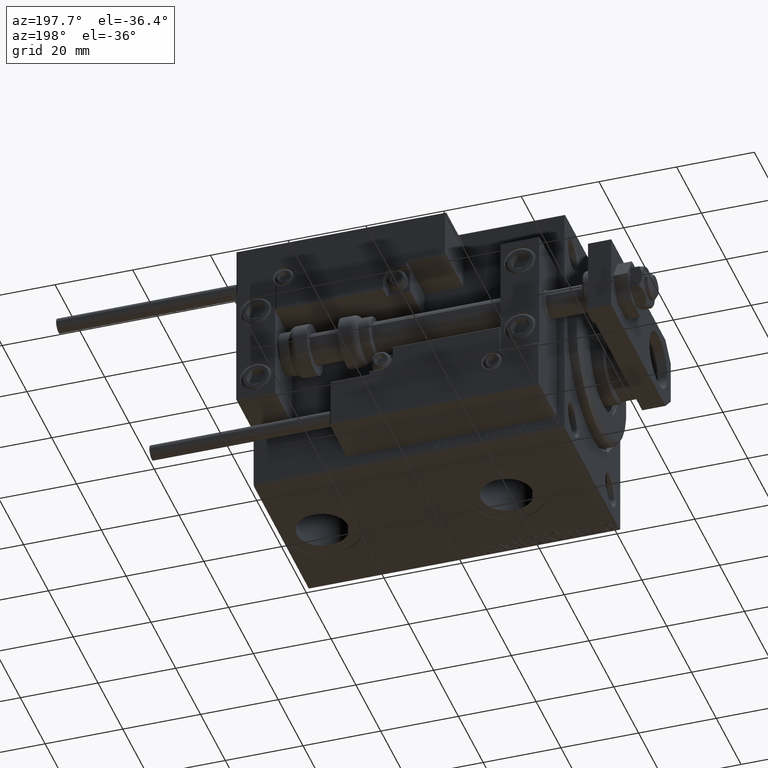
[diagram: clean part render]
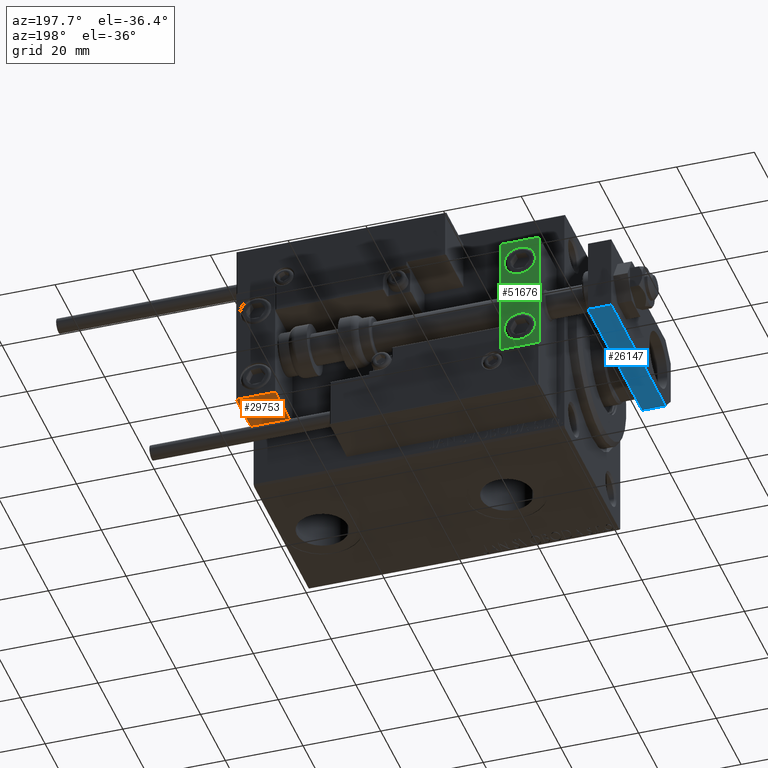
[diagram: same view with three faces highlighted in distinct colors, each labeled with its STEP entity id]
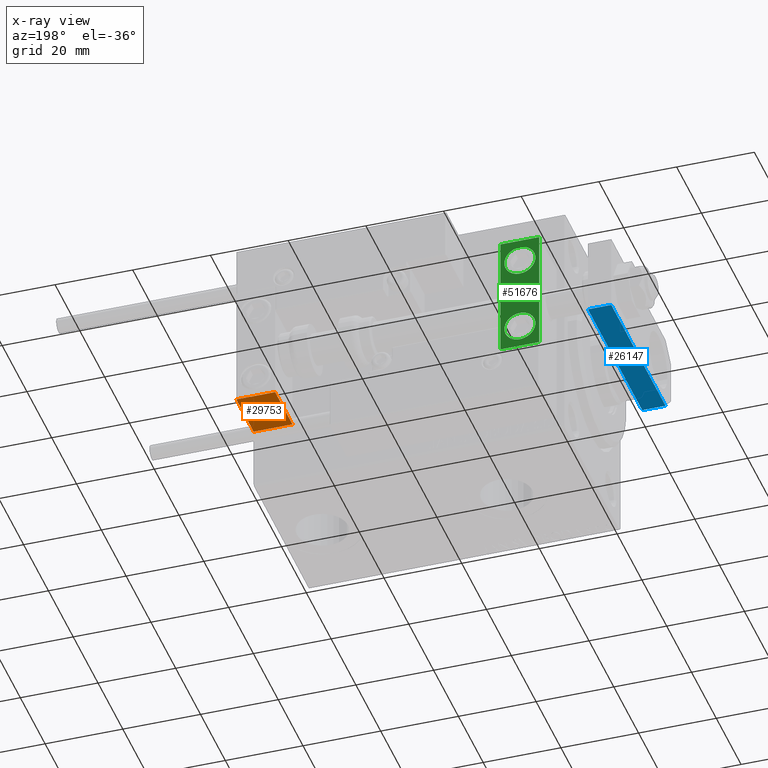
[diagram: x-ray of the same camera — body ghosted, the three highlighted faces saturated]
A machine part, auxiliary view with three faces highlighted in distinct colors.
The next image is the same camera in x-ray (body ghosted, the three faces saturated) — at least one of them is partly hidden behind the body in this view.
Their STEP definitions:

[orange] entity #29753 — the highlighted planar face has unit normal (0, 0, -1).
#960 = VECTOR ( 'NONE', #49101, 1000.000000000000000 ) ;
#1584 = DIRECTION ( 'NONE',  ( -1.000000000000000000, -0.000000000000000000, -0.000000000000000000 ) ) ;
#2459 = EDGE_CURVE ( 'NONE', #25070, #26708, #20654, .T. ) ;
#2849 = DIRECTION ( 'NONE',  ( -1.000000000000000000, -0.000000000000000000, -0.000000000000000000 ) ) ;
#4058 = DIRECTION ( 'NONE',  ( 0.000000000000000000, 0.000000000000000000, -1.000000000000000000 ) ) ;
#6932 = EDGE_CURVE ( 'NONE', #28813, #26708, #29768, .T. ) ;
#7536 = ORIENTED_EDGE ( 'NONE', *, *, #17649, .F. ) ;
#7581 = CARTESIAN_POINT ( 'NONE',  ( 10.00000000000000000, 7.000000000000000000, -16.00000000000000711 ) ) ;
#9059 = LINE ( 'NONE', #25288, #51463 ) ;
#12638 = CARTESIAN_POINT ( 'NONE',  ( 0.000000000000000000, 7.000000000000000000, -16.00000000000000711 ) ) ;
#13085 = CARTESIAN_POINT ( 'NONE',  ( 10.00000000000000000, 7.000000000000000000, -16.00000000000000711 ) ) ;
#14382 = EDGE_CURVE ( 'NONE', #48520, #28813, #9059, .T. ) ;
#16549 = PLANE ( 'NONE',  #42567 ) ;
#17356 = DIRECTION ( 'NONE',  ( -1.000000000000000000, 0.000000000000000000, -0.000000000000000000 ) ) ;
#17649 = EDGE_CURVE ( 'NONE', #48520, #25070, #18792, .T. ) ;
#18792 = LINE ( 'NONE', #7581, #24372 ) ;
#18944 = VECTOR ( 'NONE', #1584, 1000.000000000000000 ) ;
#20654 = LINE ( 'NONE', #21726, #960 ) ;
#21726 = CARTESIAN_POINT ( 'NONE',  ( 0.000000000000000000, 7.000000000000000000, -16.00000000000000711 ) ) ;
#22605 = CARTESIAN_POINT ( 'NONE',  ( 0.000000000000000000, -7.000000000000000000, -16.00000000000000711 ) ) ;
#24372 = VECTOR ( 'NONE', #2849, 1000.000000000000000 ) ;
#25070 = VERTEX_POINT ( 'NONE', #12638 ) ;
#25288 = CARTESIAN_POINT ( 'NONE',  ( 10.00000000000000000, 7.000000000000000000, -16.00000000000000711 ) ) ;
#25398 = ORIENTED_EDGE ( 'NONE', *, *, #2459, .F. ) ;
#26708 = VERTEX_POINT ( 'NONE', #22605 ) ;
#28813 = VERTEX_POINT ( 'NONE', #31573 ) ;
#29753 = ADVANCED_FACE ( 'NONE', ( #48722 ), #16549, .T. ) ;
#29768 = LINE ( 'NONE', #38014, #18944 ) ;
#31287 = EDGE_LOOP ( 'NONE', ( #25398, #7536, #44270, #34687 ) ) ;
#31573 = CARTESIAN_POINT ( 'NONE',  ( 10.00000000000000000, -7.000000000000000000, -16.00000000000000711 ) ) ;
#32996 = CARTESIAN_POINT ( 'NONE',  ( 10.00000000000000000, 7.000000000000000000, -16.00000000000000711 ) ) ;
#34687 = ORIENTED_EDGE ( 'NONE', *, *, #6932, .T. ) ;
#38014 = CARTESIAN_POINT ( 'NONE',  ( 10.00000000000000000, -7.000000000000000000, -16.00000000000000711 ) ) ;
#42567 = AXIS2_PLACEMENT_3D ( 'NONE', #13085, #4058, #17356 ) ;
#44270 = ORIENTED_EDGE ( 'NONE', *, *, #14382, .T. ) ;
#46024 = DIRECTION ( 'NONE',  ( 0.000000000000000000, -1.000000000000000000, 0.000000000000000000 ) ) ;
#48520 = VERTEX_POINT ( 'NONE', #32996 ) ;
#48722 = FACE_OUTER_BOUND ( 'NONE', #31287, .T. ) ;
#49101 = DIRECTION ( 'NONE',  ( 0.000000000000000000, -1.000000000000000000, 0.000000000000000000 ) ) ;
#51463 = VECTOR ( 'NONE', #46024, 1000.000000000000000 ) ;

[blue] entity #26147 — the highlighted planar face has unit normal (0, -0, 1).
#109 = EDGE_CURVE ( 'NONE', #16034, #46154, #10763, .T. ) ;
#1096 = LINE ( 'NONE', #24750, #4235 ) ;
#1238 = LINE ( 'NONE', #30192, #29770 ) ;
#3460 = CARTESIAN_POINT ( 'NONE',  ( -10.00000000000000000, 48.00000000000000000, 6.000000000000000000 ) ) ;
#4235 = VECTOR ( 'NONE', #8784, 1000.000000000000000 ) ;
#4381 = VERTEX_POINT ( 'NONE', #52573 ) ;
#6141 = CARTESIAN_POINT ( 'NONE',  ( -10.00000000000000000, 48.00000000000000000, 0.000000000000000000 ) ) ;
#7949 = PLANE ( 'NONE',  #9419 ) ;
#8176 = ORIENTED_EDGE ( 'NONE', *, *, #109, .T. ) ;
#8784 = DIRECTION ( 'NONE',  ( -0.000000000000000000, -0.000000000000000000, -1.000000000000000000 ) ) ;
#9419 = AXIS2_PLACEMENT_3D ( 'NONE', #3460, #32410, #23150 ) ;
#10763 = LINE ( 'NONE', #35219, #35641 ) ;
#13680 = VECTOR ( 'NONE', #47330, 1000.000000000000000 ) ;
#16034 = VERTEX_POINT ( 'NONE', #17579 ) ;
#17579 = CARTESIAN_POINT ( 'NONE',  ( -10.00000000000000533, 4.240000000000021529, 0.000000000000000000 ) ) ;
#17885 = CARTESIAN_POINT ( 'NONE',  ( -10.00000000000000533, 4.240000000000021529, 6.000000000000000000 ) ) ;
#23150 = DIRECTION ( 'NONE',  ( 1.084202172485504434E-16, 1.000000000000000000, 0.000000000000000000 ) ) ;
#24750 = CARTESIAN_POINT ( 'NONE',  ( -10.00000000000000000, 48.00000000000000000, 6.000000000000000000 ) ) ;
#25134 = EDGE_CURVE ( 'NONE', #4381, #46154, #1238, .T. ) ;
#25927 = EDGE_CURVE ( 'NONE', #27046, #16034, #38324, .T. ) ;
#26147 = ADVANCED_FACE ( 'NONE', ( #47848 ), #7949, .F. ) ;
#27046 = VERTEX_POINT ( 'NONE', #38238 ) ;
#27434 = EDGE_CURVE ( 'NONE', #4381, #27046, #1096, .T. ) ;
#29770 = VECTOR ( 'NONE', #37116, 1000.000000000000000 ) ;
#30069 = ORIENTED_EDGE ( 'NONE', *, *, #27434, .T. ) ;
#30192 = CARTESIAN_POINT ( 'NONE',  ( -10.00000000000000000, 48.00000000000000000, 6.000000000000000000 ) ) ;
#31222 = DIRECTION ( 'NONE',  ( 0.000000000000000000, 0.000000000000000000, 1.000000000000000000 ) ) ;
#32410 = DIRECTION ( 'NONE',  ( 1.000000000000000000, -1.084202172485504434E-16, 0.000000000000000000 ) ) ;
#35219 = CARTESIAN_POINT ( 'NONE',  ( -10.00000000000000533, 4.240000000000021529, 6.000000000000000000 ) ) ;
#35641 = VECTOR ( 'NONE', #31222, 1000.000000000000000 ) ;
#37031 = ORIENTED_EDGE ( 'NONE', *, *, #25134, .F. ) ;
#37116 = DIRECTION ( 'NONE',  ( -1.084202172485504434E-16, -1.000000000000000000, 0.000000000000000000 ) ) ;
#38238 = CARTESIAN_POINT ( 'NONE',  ( -10.00000000000000000, 48.00000000000000000, 0.000000000000000000 ) ) ;
#38324 = LINE ( 'NONE', #6141, #13680 ) ;
#39449 = EDGE_LOOP ( 'NONE', ( #40428, #8176, #37031, #30069 ) ) ;
#40428 = ORIENTED_EDGE ( 'NONE', *, *, #25927, .T. ) ;
#46154 = VERTEX_POINT ( 'NONE', #17885 ) ;
#47330 = DIRECTION ( 'NONE',  ( -1.084202172485504434E-16, -1.000000000000000000, 0.000000000000000000 ) ) ;
#47848 = FACE_OUTER_BOUND ( 'NONE', #39449, .T. ) ;
#52573 = CARTESIAN_POINT ( 'NONE',  ( -10.00000000000000000, 48.00000000000000000, 6.000000000000000000 ) ) ;

[green] entity #51676 — the highlighted planar face has unit normal (-0, 1, 0).
#1236 = CARTESIAN_POINT ( 'NONE',  ( 5.000000000000000888, 6.999999999999999112, -10.00000000000000178 ) ) ;
#1497 = EDGE_CURVE ( 'NONE', #3571, #25070, #32760, .T. ) ;
#2745 = AXIS2_PLACEMENT_3D ( 'NONE', #35563, #24120, #23359 ) ;
#2849 = DIRECTION ( 'NONE',  ( -1.000000000000000000, -0.000000000000000000, -0.000000000000000000 ) ) ;
#3571 = VERTEX_POINT ( 'NONE', #38262 ) ;
#4427 = AXIS2_PLACEMENT_3D ( 'NONE', #30572, #6384, #35609 ) ;
#5391 = VERTEX_POINT ( 'NONE', #34540 ) ;
#5806 = DIRECTION ( 'NONE',  ( -1.000000000000000000, -0.000000000000000000, -0.000000000000000000 ) ) ;
#6151 = CIRCLE ( 'NONE', #2745, 4.000000000000000888 ) ;
#6384 = DIRECTION ( 'NONE',  ( -0.000000000000000000, 1.000000000000000000, 0.000000000000000000 ) ) ;
#6926 = DIRECTION ( 'NONE',  ( 0.000000000000000000, 0.000000000000000000, 1.000000000000000000 ) ) ;
#7188 = CARTESIAN_POINT ( 'NONE',  ( 5.000000000000000888, 7.000000000000000888, 10.00000000000000178 ) ) ;
#7581 = CARTESIAN_POINT ( 'NONE',  ( 10.00000000000000000, 7.000000000000000000, -16.00000000000000711 ) ) ;
#8264 = CARTESIAN_POINT ( 'NONE',  ( 5.000000000000001776, 6.999999999999999112, -14.00000000000000178 ) ) ;
#8920 = DIRECTION ( 'NONE',  ( 0.000000000000000000, 1.000000000000000000, -6.065466699219605527E-17 ) ) ;
#9641 = VERTEX_POINT ( 'NONE', #8264 ) ;
#10544 = ORIENTED_EDGE ( 'NONE', *, *, #17649, .T. ) ;
#10734 = CIRCLE ( 'NONE', #43857, 4.000000000000000000 ) ;
#10743 = EDGE_CURVE ( 'NONE', #43964, #5391, #47164, .T. ) ;
#11903 = ORIENTED_EDGE ( 'NONE', *, *, #12250, .T. ) ;
#11917 = DIRECTION ( 'NONE',  ( 0.000000000000000000, 0.000000000000000000, 1.000000000000000000 ) ) ;
#11932 = VECTOR ( 'NONE', #28250, 1000.000000000000000 ) ;
#12092 = ORIENTED_EDGE ( 'NONE', *, *, #48994, .F. ) ;
#12250 = EDGE_CURVE ( 'NONE', #5391, #43964, #10734, .T. ) ;
#12538 = CARTESIAN_POINT ( 'NONE',  ( 0.000000000000000000, 7.000000000000000000, 15.99999999999999289 ) ) ;
#12638 = CARTESIAN_POINT ( 'NONE',  ( 0.000000000000000000, 7.000000000000000000, -16.00000000000000711 ) ) ;
#13967 = ORIENTED_EDGE ( 'NONE', *, *, #10743, .T. ) ;
#14053 = LINE ( 'NONE', #33995, #23029 ) ;
#14360 = FACE_BOUND ( 'NONE', #26729, .T. ) ;
#15012 = VERTEX_POINT ( 'NONE', #18558 ) ;
#15295 = EDGE_CURVE ( 'NONE', #15012, #9641, #50627, .T. ) ;
#17523 = ORIENTED_EDGE ( 'NONE', *, *, #28707, .F. ) ;
#17649 = EDGE_CURVE ( 'NONE', #48520, #25070, #18792, .T. ) ;
#17745 = CARTESIAN_POINT ( 'NONE',  ( 10.00000000000000000, 7.000000000000000000, 15.99999999999999289 ) ) ;
#18417 = DIRECTION ( 'NONE',  ( 0.000000000000000000, 0.000000000000000000, -1.000000000000000000 ) ) ;
#18558 = CARTESIAN_POINT ( 'NONE',  ( 5.000000000000000888, 6.999999999999999112, -6.000000000000000888 ) ) ;
#18792 = LINE ( 'NONE', #7581, #24372 ) ;
#20411 = CARTESIAN_POINT ( 'NONE',  ( 5.000000000000000888, 7.000000000000000888, 10.00000000000000178 ) ) ;
#21428 = DIRECTION ( 'NONE',  ( 0.000000000000000000, 0.000000000000000000, 1.000000000000000000 ) ) ;
#23029 = VECTOR ( 'NONE', #5806, 1000.000000000000000 ) ;
#23359 = DIRECTION ( 'NONE',  ( 0.000000000000000000, 0.000000000000000000, 1.000000000000000000 ) ) ;
#24090 = ORIENTED_EDGE ( 'NONE', *, *, #15295, .F. ) ;
#24120 = DIRECTION ( 'NONE',  ( 0.000000000000000000, 1.000000000000000000, -6.065466699219605527E-17 ) ) ;
#24232 = AXIS2_PLACEMENT_3D ( 'NONE', #7188, #43866, #6926 ) ;
#24372 = VECTOR ( 'NONE', #2849, 1000.000000000000000 ) ;
#25070 = VERTEX_POINT ( 'NONE', #12638 ) ;
#26729 = EDGE_LOOP ( 'NONE', ( #24090, #12092 ) ) ;
#28250 = DIRECTION ( 'NONE',  ( 0.000000000000000000, 0.000000000000000000, -1.000000000000000000 ) ) ;
#28707 = EDGE_CURVE ( 'NONE', #49847, #3571, #14053, .T. ) ;
#30572 = CARTESIAN_POINT ( 'NONE',  ( 10.00000000000000000, 7.000000000000000000, 15.99999999999999289 ) ) ;
#31678 = ORIENTED_EDGE ( 'NONE', *, *, #51425, .T. ) ;
#32760 = LINE ( 'NONE', #12538, #11932 ) ;
#32762 = AXIS2_PLACEMENT_3D ( 'NONE', #1236, #8920, #21428 ) ;
#32996 = CARTESIAN_POINT ( 'NONE',  ( 10.00000000000000000, 7.000000000000000000, -16.00000000000000711 ) ) ;
#33995 = CARTESIAN_POINT ( 'NONE',  ( 10.00000000000000000, 7.000000000000000000, 15.99999999999999289 ) ) ;
#34540 = CARTESIAN_POINT ( 'NONE',  ( 5.000000000000000888, 7.000000000000000888, 14.00000000000000178 ) ) ;
#35563 = CARTESIAN_POINT ( 'NONE',  ( 5.000000000000000888, 6.999999999999999112, -10.00000000000000178 ) ) ;
#35609 = DIRECTION ( 'NONE',  ( 0.000000000000000000, -0.000000000000000000, 1.000000000000000000 ) ) ;
#37479 = EDGE_LOOP ( 'NONE', ( #11903, #13967 ) ) ;
#37841 = CARTESIAN_POINT ( 'NONE',  ( 10.00000000000000000, 7.000000000000000000, 15.99999999999999289 ) ) ;
#38262 = CARTESIAN_POINT ( 'NONE',  ( 0.000000000000000000, 7.000000000000000000, 15.99999999999999289 ) ) ;
#39360 = FACE_BOUND ( 'NONE', #37479, .T. ) ;
#41677 = EDGE_LOOP ( 'NONE', ( #47569, #17523, #31678, #10544 ) ) ;
#43592 = FACE_OUTER_BOUND ( 'NONE', #41677, .T. ) ;
#43857 = AXIS2_PLACEMENT_3D ( 'NONE', #20411, #48608, #11917 ) ;
#43866 = DIRECTION ( 'NONE',  ( 1.848892746611746419E-32, -1.000000000000000000, 6.616381192988677562E-17 ) ) ;
#43964 = VERTEX_POINT ( 'NONE', #51423 ) ;
#46590 = LINE ( 'NONE', #37841, #52077 ) ;
#47164 = CIRCLE ( 'NONE', #24232, 4.000000000000000000 ) ;
#47569 = ORIENTED_EDGE ( 'NONE', *, *, #1497, .F. ) ;
#48520 = VERTEX_POINT ( 'NONE', #32996 ) ;
#48608 = DIRECTION ( 'NONE',  ( 1.848892746611746419E-32, -1.000000000000000000, 6.616381192988677562E-17 ) ) ;
#48994 = EDGE_CURVE ( 'NONE', #9641, #15012, #6151, .T. ) ;
#49847 = VERTEX_POINT ( 'NONE', #17745 ) ;
#50627 = CIRCLE ( 'NONE', #32762, 4.000000000000000888 ) ;
#51423 = CARTESIAN_POINT ( 'NONE',  ( 5.000000000000001776, 7.000000000000000888, 6.000000000000000888 ) ) ;
#51425 = EDGE_CURVE ( 'NONE', #49847, #48520, #46590, .T. ) ;
#51584 = PLANE ( 'NONE',  #4427 ) ;
#51676 = ADVANCED_FACE ( 'NONE', ( #43592, #14360, #39360 ), #51584, .T. ) ;
#52077 = VECTOR ( 'NONE', #18417, 1000.000000000000000 ) ;